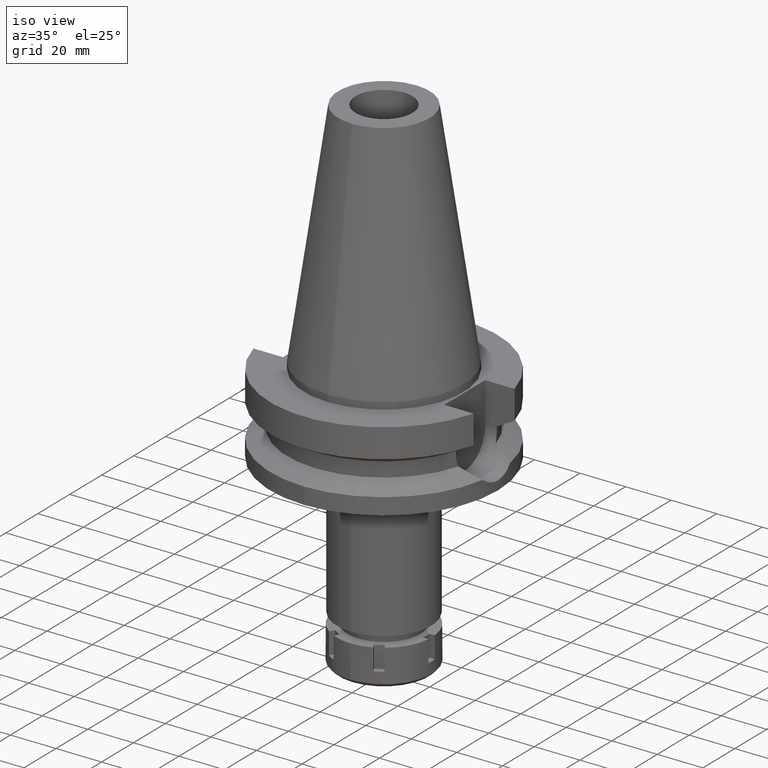
[diagram: clean part render]
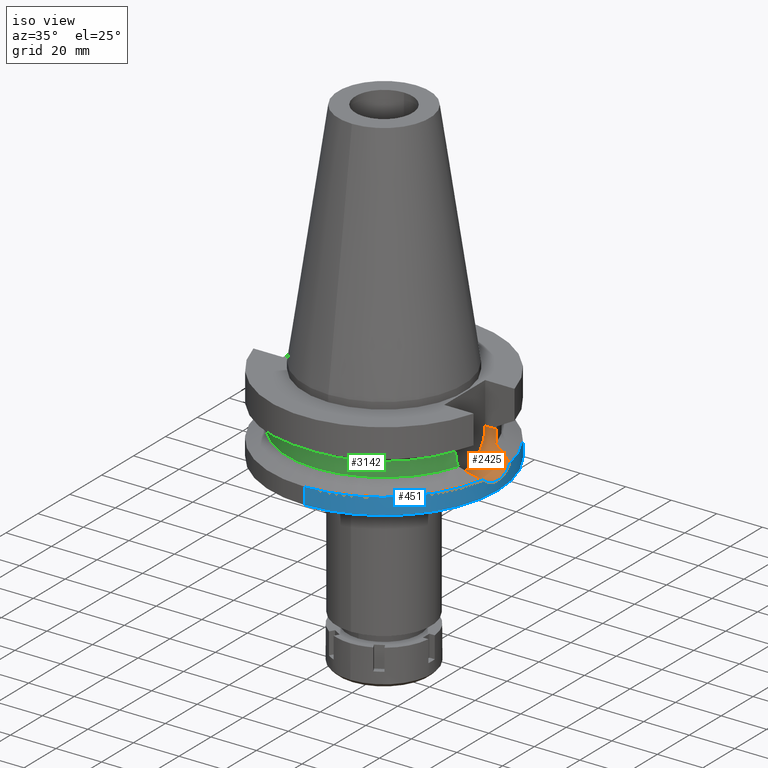
[diagram: same view with three faces highlighted in distinct colors, each labeled with its STEP entity id]
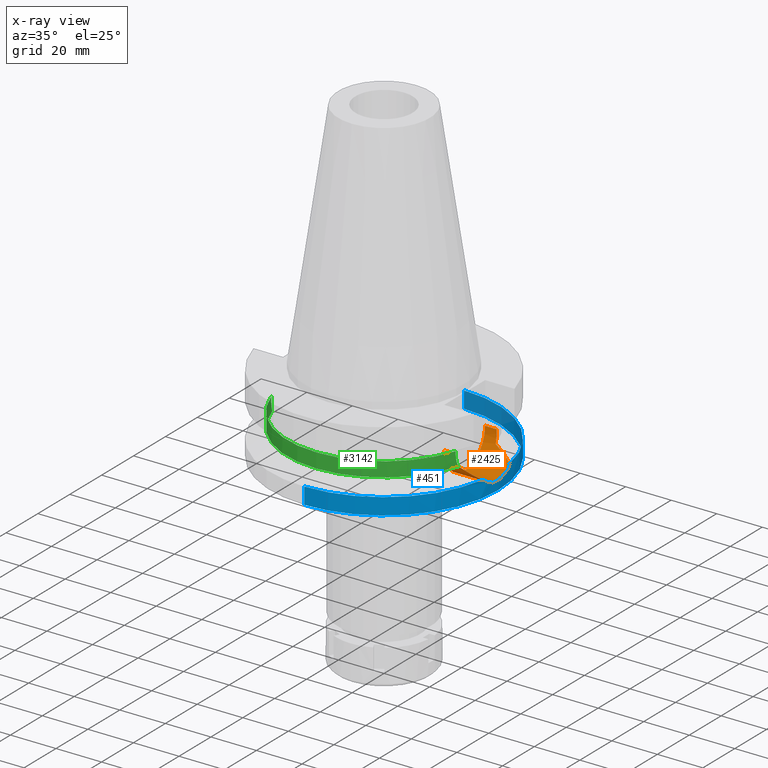
[diagram: x-ray of the same camera — body ghosted, the three highlighted faces saturated]
A machine part, iso view with three faces highlighted in distinct colors.
The next image is the same camera in x-ray (body ghosted, the three faces saturated) — at least one of them is partly hidden behind the body in this view.
Their STEP definitions:

[orange] entity #2425 — the highlighted cylindrical surface (edge-blend (fillet) strip) has radius 12.85 mm, axis along (1, 0, 0).
#45 = CARTESIAN_POINT ( 'NONE',  ( 40.51083188481999997, -12.84999999999999964, -21.14999999999999858 ) ) ;
#49 = CARTESIAN_POINT ( 'NONE',  ( 40.60092750940732031, 12.56262654778542931, -23.85254111937017640 ) ) ;
#55 = CARTESIAN_POINT ( 'NONE',  ( 45.33243307059954930, 10.38335453230233441, -28.72023715090724139 ) ) ;
#91 = EDGE_LOOP ( 'NONE', ( #467, #410, #1720, #903, #314, #3273, #524, #620, #2771 ) ) ;
#116 = CARTESIAN_POINT ( 'NONE',  ( 35.39999999999999858, -12.84999999999999964, -21.14999999999999858 ) ) ;
#130 = CARTESIAN_POINT ( 'NONE',  ( 45.40379164219142893, 10.35650822756904432, -28.75694566959975518 ) ) ;
#179 = CARTESIAN_POINT ( 'NONE',  ( 40.56599673094050473, -12.67509433839779120, -23.26596311455569932 ) ) ;
#210 = CARTESIAN_POINT ( 'NONE',  ( 40.63719938804641174, 12.44499676302016233, -24.35261212845198742 ) ) ;
#216 = CARTESIAN_POINT ( 'NONE',  ( 40.79434743163939459, 11.92110232363585531, -25.97065181133539369 ) ) ;
#314 = ORIENTED_EDGE ( 'NONE', *, *, #3122, .F. ) ;
#325 = VERTEX_POINT ( 'NONE', #2353 ) ;
#404 = EDGE_CURVE ( 'NONE', #2969, #2478, #1699, .T. ) ;
#410 = ORIENTED_EDGE ( 'NONE', *, *, #404, .T. ) ;
#427 = CARTESIAN_POINT ( 'NONE',  ( 46.75953253645555208, 9.809270111663222380, -29.45390692277220168 ) ) ;
#453 = CARTESIAN_POINT ( 'NONE',  ( 40.59188398425018818, -12.59182459259147002, -23.71305796896682594 ) ) ;
#462 = CARTESIAN_POINT ( 'NONE',  ( 49.26250064874000145, 8.556052234130000045, -30.73730776426999967 ) ) ;
#467 = ORIENTED_EDGE ( 'NONE', *, *, #1173, .T. ) ;
#500 = CARTESIAN_POINT ( 'NONE',  ( 40.54025313608426018, -12.75731810731625337, -22.70684014861359756 ) ) ;
#505 = CARTESIAN_POINT ( 'NONE',  ( 49.49359661717551262, 7.117097517338555335, -31.87764506060712577 ) ) ;
#524 = ORIENTED_EDGE ( 'NONE', *, *, #781, .T. ) ;
#538 = CARTESIAN_POINT ( 'NONE',  ( 49.86956835087499940, 3.608176225904875078, -33.48463187140002617 ) ) ;
#539 = VERTEX_POINT ( 'NONE', #3139 ) ;
#558 = CYLINDRICAL_SURFACE ( 'NONE', #1211, 12.85000000000000320 ) ;
#598 = CARTESIAN_POINT ( 'NONE',  ( 49.79053563887230638, -4.571955316160962290, -33.15915263188560402 ) ) ;
#620 = ORIENTED_EDGE ( 'NONE', *, *, #2142, .T. ) ;
#628 = VECTOR ( 'NONE', #2889, 1000.000000000000000 ) ;
#630 = CARTESIAN_POINT ( 'NONE',  ( 45.48500909913860113, 10.32574754409892215, -28.79872370404616078 ) ) ;
#632 = B_SPLINE_CURVE_WITH_KNOTS ( 'NONE', 3,
 ( #3067, #1648, #796, #2131, #2495, #1302 ),
 .UNSPECIFIED., .F., .F.,
 ( 4, 2, 4 ),
 ( 0.0000000000000000000, 0.5000000000000000000, 1.000000000000000000 ),
 .UNSPECIFIED. ) ;
#652 = CARTESIAN_POINT ( 'NONE',  ( 49.78972506718586999, -4.580790312887489613, -33.15578537448732277 ) ) ;
#661 = CARTESIAN_POINT ( 'NONE',  ( 42.53034043756355231, 11.33527986160932066, -27.27724400854194542 ) ) ;
#680 = CARTESIAN_POINT ( 'NONE',  ( 40.85052569294000335, 11.72538061688000077, -26.40718074535000426 ) ) ;
#745 = CARTESIAN_POINT ( 'NONE',  ( 40.51818719763606680, -12.82722225432308960, -22.03686830847411215 ) ) ;
#775 = CARTESIAN_POINT ( 'NONE',  ( 40.60257095199544608, 12.55731571366465182, -23.87709474180955738 ) ) ;
#781 = EDGE_CURVE ( 'NONE', #539, #2394, #632, .T. ) ;
#796 = CARTESIAN_POINT ( 'NONE',  ( 44.24070016522979643, -10.80636115588409574, -28.15887332331037740 ) ) ;
#804 = DIRECTION ( 'NONE',  ( 0.0000000000000000000, 0.0000000000000000000, -1.000000000000000000 ) ) ;
#816 = B_SPLINE_CURVE_WITH_KNOTS ( 'NONE', 3,
 ( #1187, #2662, #1555, #2052, #427, #3504, #1203, #2309, #630, #130, #1259, #3490, #55, #1501, #661, #2900 ),
 .UNSPECIFIED., .F., .F.,
 ( 4, 2, 2, 1, 1, 1, 1, 2, 2, 4 ),
 ( 0.0000000000000000000, 0.2500000000000469069, 0.3750000000000713873, 0.4375000000000827671, 0.4687500000000875966, 0.4843750000000898170, 0.4921875000000899281, 0.4960937500000889289, 0.5000000000000879297, 1.000000000000000000 ),
 .UNSPECIFIED. ) ;
#876 = EDGE_CURVE ( 'NONE', #2104, #539, #3158, .T. ) ;
#885 = CARTESIAN_POINT ( 'NONE',  ( 49.86089524291222830, -3.802281370710396846, -33.45152773120565826 ) ) ;
#903 = ORIENTED_EDGE ( 'NONE', *, *, #1638, .T. ) ;
#1058 = CARTESIAN_POINT ( 'NONE',  ( 40.62482961095487610, 12.48525133054237379, -24.19329755004105564 ) ) ;
#1070 = CARTESIAN_POINT ( 'NONE',  ( 35.39999999999999858, 12.84999999999999964, -21.14999999999999858 ) ) ;
#1075 = CARTESIAN_POINT ( 'NONE',  ( 40.65435955981745764, -12.39001970624487292, -24.66361747048510011 ) ) ;
#1079 = CARTESIAN_POINT ( 'NONE',  ( 49.84837320789218751, 3.895659733851558393, -33.39815592390944943 ) ) ;
#1122 = VERTEX_POINT ( 'NONE', #116 ) ;
#1132 = CARTESIAN_POINT ( 'NONE',  ( 49.80628862110419419, 4.396903292115012185, -33.22452887384411468 ) ) ;
#1173 = EDGE_CURVE ( 'NONE', #2602, #2969, #816, .T. ) ;
#1181 = CARTESIAN_POINT ( 'NONE',  ( 40.54025086427707691, 12.75862911299039659, -22.93149008167891267 ) ) ;
#1187 = CARTESIAN_POINT ( 'NONE',  ( 49.26250064874000145, 8.556052234130000045, -30.73730776426999967 ) ) ;
#1203 = CARTESIAN_POINT ( 'NONE',  ( 45.96584841009470068, 10.13901845308247651, -29.04601403992775843 ) ) ;
#1211 = AXIS2_PLACEMENT_3D ( 'NONE', #2790, #3667, #804 ) ;
#1236 = CARTESIAN_POINT ( 'NONE',  ( 49.78850586346571561, -4.594055356253032407, -33.15072133026724543 ) ) ;
#1259 = CARTESIAN_POINT ( 'NONE',  ( 45.36888519996826119, 10.36965759942468246, -28.73898915168728507 ) ) ;
#1302 = CARTESIAN_POINT ( 'NONE',  ( 49.26250064874000145, -8.556052234130000045, -30.73730776426999967 ) ) ;
#1328 = VECTOR ( 'NONE', #2399, 1000.000000000000000 ) ;
#1360 = CARTESIAN_POINT ( 'NONE',  ( 40.51083188481999997, -12.84999999999999964, -21.14999999999999858 ) ) ;
#1404 = FACE_OUTER_BOUND ( 'NONE', #91, .T. ) ;
#1441 = CARTESIAN_POINT ( 'NONE',  ( 40.51083188481999997, 12.84999999999999964, -22.03308001790878023 ) ) ;
#1495 = CARTESIAN_POINT ( 'NONE',  ( 35.39999999999999858, 0.0000000000000000000, -21.14999999999999858 ) ) ;
#1501 = CARTESIAN_POINT ( 'NONE',  ( 44.02092064244708070, 10.87473587190525315, -28.04554399755864580 ) ) ;
#1512 = CARTESIAN_POINT ( 'NONE',  ( 49.82079234875428853, 4.230048365419889933, -33.28454251579193368 ) ) ;
#1514 = CARTESIAN_POINT ( 'NONE',  ( 49.38719034093479365, -7.838136322118320898, -31.37800129303942853 ) ) ;
#1555 = CARTESIAN_POINT ( 'NONE',  ( 48.08420350912489738, 9.199014339284307340, -30.13377188362764514 ) ) ;
#1632 = CARTESIAN_POINT ( 'NONE',  ( 40.59544671389546977, -12.58032818125506580, -23.76890350620163517 ) ) ;
#1638 = EDGE_CURVE ( 'NONE', #325, #1122, #2687, .T. ) ;
#1648 = CARTESIAN_POINT ( 'NONE',  ( 42.65283723944623517, -11.30683262057288019, -27.34069146161790442 ) ) ;
#1653 = CARTESIAN_POINT ( 'NONE',  ( 49.90869784561250810, 3.032821729961897805, -33.64331055704772666 ) ) ;
#1699 = B_SPLINE_CURVE_WITH_KNOTS ( 'NONE', 3,
 ( #680, #216, #1900, #3393, #3151, #210, #1058, #2054, #3195, #775, #49, #1181, #1441, #2022 ),
 .UNSPECIFIED., .F., .F.,
 ( 4, 2, 2, 1, 1, 2, 2, 4 ),
 ( 0.0000000000000000000, 0.2500000000000199285, 0.3750000000000298650, 0.4375000000000346945, 0.4687500000000359157, 0.4843750000000358047, 0.5000000000000356382, 1.000000000000000000 ),
 .UNSPECIFIED. ) ;
#1720 = ORIENTED_EDGE ( 'NONE', *, *, #1751, .F. ) ;
#1726 = CARTESIAN_POINT ( 'NONE',  ( 49.49360537166788276, -7.117033888788488305, -31.87769203035870191 ) ) ;
#1751 = EDGE_CURVE ( 'NONE', #325, #2478, #2458, .T. ) ;
#1762 = B_SPLINE_CURVE_WITH_KNOTS ( 'NONE', 3,
 ( #2058, #1514, #1726, #3443, #2653, #3145, #3202, #2299, #2633, #2904, #3182, #1236, #652, #598, #1779, #885, #2580, #2920, #2018, #3495 ),
 .UNSPECIFIED., .F., .F.,
 ( 4, 2, 2, 2, 1, 1, 1, 1, 2, 2, 2, 4 ),
 ( 0.0000000000000000000, 0.2499999999999650280, 0.3749999999999478750, 0.4374999999999388822, 0.4687499999999350520, 0.4843749999999327205, 0.4921874999999311107, 0.4960937499999306111, 0.4980468749999303335, 0.4999999999999300559, 0.7499999999999650280, 1.000000000000000000 ),
 .UNSPECIFIED. ) ;
#1779 = CARTESIAN_POINT ( 'NONE',  ( 49.79079948641093978, -4.569077029243484134, -33.16024877062273646 ) ) ;
#1849 = CARTESIAN_POINT ( 'NONE',  ( 40.58662608485430923, -12.60878154790535000, -23.62927549513685221 ) ) ;
#1873 = CARTESIAN_POINT ( 'NONE',  ( 40.57496101843507574, -12.64633755876298693, -23.43369807928904081 ) ) ;
#1888 = CARTESIAN_POINT ( 'NONE',  ( 40.85052569294000335, -11.72538061688000077, -26.40718074535000426 ) ) ;
#1900 = CARTESIAN_POINT ( 'NONE',  ( 40.74530522851000569, 12.08734613715847139, -25.53455770061882646 ) ) ;
#1906 = CARTESIAN_POINT ( 'NONE',  ( 49.79239523035388970, 4.551608024956790288, -33.16687999445642276 ) ) ;
#1943 = CARTESIAN_POINT ( 'NONE',  ( 49.26250064874000145, -8.556052234130000045, -30.73730776426999967 ) ) ;
#2018 = CARTESIAN_POINT ( 'NONE',  ( 50.00000000000001421, -0.7410781193699033098, -34.00000000000001421 ) ) ;
#2022 = CARTESIAN_POINT ( 'NONE',  ( 40.51083188481999997, 12.84999999999999964, -21.14999999999999858 ) ) ;
#2052 = CARTESIAN_POINT ( 'NONE',  ( 47.09914492383754947, 9.658820935553016795, -29.62829927832092380 ) ) ;
#2054 = CARTESIAN_POINT ( 'NONE',  ( 40.61156896389181270, 12.52821669071923338, -24.00856318992673266 ) ) ;
#2058 = CARTESIAN_POINT ( 'NONE',  ( 49.26250064874000145, -8.556052234130000045, -30.73730776426999967 ) ) ;
#2104 = VERTEX_POINT ( 'NONE', #3428 ) ;
#2123 = CARTESIAN_POINT ( 'NONE',  ( 50.00000000000000000, 1.760368541433999985E-14, -34.00000000000000000 ) ) ;
#2131 = CARTESIAN_POINT ( 'NONE',  ( 46.98629010998021016, -9.746398928490775049, -29.57077517930066435 ) ) ;
#2142 = EDGE_CURVE ( 'NONE', #2394, #2504, #1762, .T. ) ;
#2203 = CARTESIAN_POINT ( 'NONE',  ( 50.00000000000000000, 1.760368541433999985E-14, -34.00000000000000000 ) ) ;
#2237 = CARTESIAN_POINT ( 'NONE',  ( 50.00000000000000000, 0.7410986934580465757, -34.00000000000000711 ) ) ;
#2278 = CARTESIAN_POINT ( 'NONE',  ( 40.51083188481999997, 12.84999999999999964, -21.14999999999999858 ) ) ;
#2298 = LINE ( 'NONE', #45, #628 ) ;
#2299 = CARTESIAN_POINT ( 'NONE',  ( 49.75681412771811551, -4.924294299596062352, -33.01930483962578222 ) ) ;
#2309 = CARTESIAN_POINT ( 'NONE',  ( 45.64652038007193369, 10.26391370890529053, -28.88179748783484513 ) ) ;
#2353 = CARTESIAN_POINT ( 'NONE',  ( 35.39999999999999858, 12.84999999999999964, -21.14999999999999858 ) ) ;
#2394 = VERTEX_POINT ( 'NONE', #1943 ) ;
#2399 = DIRECTION ( 'NONE',  ( 1.000000000000000000, -3.336643826789999529E-14, 0.0000000000000000000 ) ) ;
#2422 = EDGE_CURVE ( 'NONE', #2504, #2602, #3455, .T. ) ;
#2425 = ADVANCED_FACE ( 'NONE', ( #1404 ), #558, .F. ) ;
#2458 = LINE ( 'NONE', #1070, #1328 ) ;
#2471 = CARTESIAN_POINT ( 'NONE',  ( 49.79509875745612391, 4.521875388848922483, -33.17810981394750058 ) ) ;
#2478 = VERTEX_POINT ( 'NONE', #2278 ) ;
#2484 = CARTESIAN_POINT ( 'NONE',  ( 49.98260911345001034, 1.500697552647298316, -33.93573404313067954 ) ) ;
#2495 = CARTESIAN_POINT ( 'NONE',  ( 48.20262528035853933, -9.164278618336991755, -30.19450504619707587 ) ) ;
#2504 = VERTEX_POINT ( 'NONE', #2123 ) ;
#2540 = CARTESIAN_POINT ( 'NONE',  ( 49.79885843275886970, 4.480234919351184786, -33.19371722163926108 ) ) ;
#2580 = CARTESIAN_POINT ( 'NONE',  ( 49.91305952682014180, -3.031241889295981817, -33.66153705292303755 ) ) ;
#2602 = VERTEX_POINT ( 'NONE', #462 ) ;
#2633 = CARTESIAN_POINT ( 'NONE',  ( 49.76777238604239528, -4.813761785160150630, -33.06473290387078379 ) ) ;
#2653 = CARTESIAN_POINT ( 'NONE',  ( 49.66531744484520772, -5.772426570909336085, -32.63572039575122119 ) ) ;
#2662 = CARTESIAN_POINT ( 'NONE',  ( 48.69587113017157520, 8.881221620589634824, -30.44711511333064635 ) ) ;
#2683 = AXIS2_PLACEMENT_3D ( 'NONE', #1495, #3206, #3467 ) ;
#2687 = CIRCLE ( 'NONE', #2683, 12.84999999999999964 ) ;
#2770 = CARTESIAN_POINT ( 'NONE',  ( 40.73816957792652005, -12.11682261037108965, -25.53412604446967649 ) ) ;
#2771 = ORIENTED_EDGE ( 'NONE', *, *, #2422, .T. ) ;
#2790 = CARTESIAN_POINT ( 'NONE',  ( 35.39999999999999858, 0.0000000000000000000, -21.14999999999999858 ) ) ;
#2806 = CARTESIAN_POINT ( 'NONE',  ( 49.73972550765590483, 5.127766568180847528, -32.94800241996087209 ) ) ;
#2889 = DIRECTION ( 'NONE',  ( -1.000000000000000000, -3.510427359434999885E-14, 0.0000000000000000000 ) ) ;
#2900 = CARTESIAN_POINT ( 'NONE',  ( 40.85052569294000335, 11.72538061688000077, -26.40718074535000426 ) ) ;
#2904 = CARTESIAN_POINT ( 'NONE',  ( 49.77980747409252871, -4.687522623509686071, -33.11462325492126269 ) ) ;
#2920 = CARTESIAN_POINT ( 'NONE',  ( 49.98261190536403120, -1.500633726445465221, -33.93573757110410583 ) ) ;
#2969 = VERTEX_POINT ( 'NONE', #3335 ) ;
#3016 = CARTESIAN_POINT ( 'NONE',  ( 40.59736864107516396, -12.57412283048223856, -23.79851909554432865 ) ) ;
#3047 = CARTESIAN_POINT ( 'NONE',  ( 40.51083188481999997, -12.84999999999999609, -21.59154171183184800 ) ) ;
#3053 = CARTESIAN_POINT ( 'NONE',  ( 49.66986618806218701, 5.762088536309740050, -32.66233170636613181 ) ) ;
#3067 = CARTESIAN_POINT ( 'NONE',  ( 40.85052569294000335, -11.72538061688000077, -26.40718074535000426 ) ) ;
#3072 = CARTESIAN_POINT ( 'NONE',  ( 49.79171236025736391, 4.559090087493951948, -33.16404260906124790 ) ) ;
#3088 = CARTESIAN_POINT ( 'NONE',  ( 49.26250064874000145, 8.556052234130000045, -30.73730776426999967 ) ) ;
#3105 = CARTESIAN_POINT ( 'NONE',  ( 49.93043645379999873, 2.648747845077763508, -33.73005492415450846 ) ) ;
#3122 = EDGE_CURVE ( 'NONE', #2104, #1122, #2298, .T. ) ;
#3125 = CARTESIAN_POINT ( 'NONE',  ( 49.79347791494136999, 4.539715724454570278, -33.17137768956445854 ) ) ;
#3139 = CARTESIAN_POINT ( 'NONE',  ( 40.85052569294000335, -11.72538061688000077, -26.40718074535000426 ) ) ;
#3145 = CARTESIAN_POINT ( 'NONE',  ( 49.71771672570248768, -5.301668118434299970, -32.85661610131025157 ) ) ;
#3151 = CARTESIAN_POINT ( 'NONE',  ( 40.66327695313657387, 12.35977177935063587, -24.67238797833628539 ) ) ;
#3158 = B_SPLINE_CURVE_WITH_KNOTS ( 'NONE', 3,
 ( #1360, #3047, #745, #500, #3621, #179, #1873, #1849, #453, #1632, #3016, #1075, #2770, #1888 ),
 .UNSPECIFIED., .F., .F.,
 ( 4, 2, 2, 1, 1, 2, 2, 4 ),
 ( 0.0000000000000000000, 0.2499999999999892308, 0.3749999999999846789, 0.4374999999999822919, 0.4687499999999819589, 0.4843749999999820144, 0.4999999999999820144, 1.000000000000000000 ),
 .UNSPECIFIED. ) ;
#3182 = CARTESIAN_POINT ( 'NONE',  ( 49.78563763145221799, -4.625094769533133032, -33.13881278610047332 ) ) ;
#3195 = CARTESIAN_POINT ( 'NONE',  ( 40.60613670648131546, 12.54578755583637495, -23.92964714798038628 ) ) ;
#3202 = CARTESIAN_POINT ( 'NONE',  ( 49.73404098631355907, -5.148335372569310842, -32.92469446701462488 ) ) ;
#3206 = DIRECTION ( 'NONE',  ( -1.000000000000000000, 0.0000000000000000000, 0.0000000000000000000 ) ) ;
#3273 = ORIENTED_EDGE ( 'NONE', *, *, #876, .T. ) ;
#3335 = CARTESIAN_POINT ( 'NONE',  ( 40.85052569294000335, 11.72538061688000077, -26.40718074535000426 ) ) ;
#3351 = CARTESIAN_POINT ( 'NONE',  ( 49.38718636588254896, 7.838159208976090753, -31.37798086799878305 ) ) ;
#3393 = CARTESIAN_POINT ( 'NONE',  ( 40.68244601107283387, 12.29666625012446346, -24.88710380514564235 ) ) ;
#3428 = CARTESIAN_POINT ( 'NONE',  ( 40.51083188481999997, -12.84999999999999964, -21.14999999999999858 ) ) ;
#3443 = CARTESIAN_POINT ( 'NONE',  ( 49.62581592557496180, -6.100685968596043729, -32.46624463462468668 ) ) ;
#3455 = B_SPLINE_CURVE_WITH_KNOTS ( 'NONE', 3,
 ( #2203, #2237, #2484, #3105, #1653, #538, #1079, #1512, #1132, #2540, #2471, #3125, #1906, #3072, #2806, #3053, #505, #3351, #3088 ),
 .UNSPECIFIED., .F., .F.,
 ( 4, 2, 2, 1, 1, 1, 1, 1, 2, 2, 2, 4 ),
 ( 0.0000000000000000000, 0.2500000000000297540, 0.3750000000000446865, 0.4375000000000521805, 0.4687500000000562883, 0.4843750000000582867, 0.4921875000000596745, 0.4960937500000605627, 0.4980468750000607292, 0.5000000000000608402, 0.7500000000000304201, 1.000000000000000000 ),
 .UNSPECIFIED. ) ;
#3467 = DIRECTION ( 'NONE',  ( 0.0000000000000000000, 1.000000000000000000, 0.0000000000000000000 ) ) ;
#3490 = CARTESIAN_POINT ( 'NONE',  ( 45.34559224722517712, 10.37841630773243295, -28.72700666603421027 ) ) ;
#3495 = CARTESIAN_POINT ( 'NONE',  ( 50.00000000000000000, 1.760368541433999985E-14, -34.00000000000000000 ) ) ;
#3504 = CARTESIAN_POINT ( 'NONE',  ( 46.23322466695320543, 10.02993712604732579, -29.18345497429006841 ) ) ;
#3621 = CARTESIAN_POINT ( 'NONE',  ( 40.54944727710435615, -12.72806419699665526, -22.93049076237651107 ) ) ;
#3667 = DIRECTION ( 'NONE',  ( 1.000000000000000000, 0.0000000000000000000, 0.0000000000000000000 ) ) ;

[blue] entity #451 — the highlighted cylindrical surface (partial cylindrical patch) has radius 50 mm, axis along (0, 0, -1).
#34 = EDGE_CURVE ( 'NONE', #2012, #2602, #3513, .T. ) ;
#50 = CARTESIAN_POINT ( 'NONE',  ( 0.0000000000000000000, 50.00000000000000000, -38.00000000000000000 ) ) ;
#98 = FACE_OUTER_BOUND ( 'NONE', #2105, .T. ) ;
#151 = ORIENTED_EDGE ( 'NONE', *, *, #1821, .T. ) ;
#167 = DIRECTION ( 'NONE',  ( 0.0000000000000000000, -2.054527022025999694E-14, -1.000000000000000000 ) ) ;
#177 = DIRECTION ( 'NONE',  ( 0.0000000000000000000, -1.000000000000000000, 0.0000000000000000000 ) ) ;
#451 = ADVANCED_FACE ( 'NONE', ( #98 ), #687, .T. ) ;
#462 = CARTESIAN_POINT ( 'NONE',  ( 49.26250064874000145, 8.556052234130000045, -30.73730776426999967 ) ) ;
#505 = CARTESIAN_POINT ( 'NONE',  ( 49.49359661717551262, 7.117097517338555335, -31.87764506060712577 ) ) ;
#538 = CARTESIAN_POINT ( 'NONE',  ( 49.86956835087499940, 3.608176225904875078, -33.48463187140002617 ) ) ;
#598 = CARTESIAN_POINT ( 'NONE',  ( 49.79053563887230638, -4.571955316160962290, -33.15915263188560402 ) ) ;
#614 = CIRCLE ( 'NONE', #1505, 50.00000000000000000 ) ;
#652 = CARTESIAN_POINT ( 'NONE',  ( 49.78972506718586999, -4.580790312887489613, -33.15578537448732277 ) ) ;
#687 = CYLINDRICAL_SURFACE ( 'NONE', #728, 50.00000000000000000 ) ;
#713 = CARTESIAN_POINT ( 'NONE',  ( 0.0000000000000000000, -50.00000000000000000, -30.73730776426999967 ) ) ;
#728 = AXIS2_PLACEMENT_3D ( 'NONE', #1247, #3238, #177 ) ;
#885 = CARTESIAN_POINT ( 'NONE',  ( 49.86089524291222830, -3.802281370710396846, -33.45152773120565826 ) ) ;
#933 = CARTESIAN_POINT ( 'NONE',  ( 0.0000000000000000000, 0.0000000000000000000, -30.73730776426999967 ) ) ;
#1079 = CARTESIAN_POINT ( 'NONE',  ( 49.84837320789218751, 3.895659733851558393, -33.39815592390944943 ) ) ;
#1092 = VECTOR ( 'NONE', #167, 1000.000000000000000 ) ;
#1127 = ORIENTED_EDGE ( 'NONE', *, *, #2422, .F. ) ;
#1132 = CARTESIAN_POINT ( 'NONE',  ( 49.80628862110419419, 4.396903292115012185, -33.22452887384411468 ) ) ;
#1152 = CIRCLE ( 'NONE', #3175, 50.00000000000000000 ) ;
#1236 = CARTESIAN_POINT ( 'NONE',  ( 49.78850586346571561, -4.594055356253032407, -33.15072133026724543 ) ) ;
#1247 = CARTESIAN_POINT ( 'NONE',  ( 0.0000000000000000000, 2.602251983507999750E-14, 112.4900000000000091 ) ) ;
#1299 = ORIENTED_EDGE ( 'NONE', *, *, #2606, .F. ) ;
#1505 = AXIS2_PLACEMENT_3D ( 'NONE', #1784, #2062, #2344 ) ;
#1512 = CARTESIAN_POINT ( 'NONE',  ( 49.82079234875428853, 4.230048365419889933, -33.28454251579193368 ) ) ;
#1514 = CARTESIAN_POINT ( 'NONE',  ( 49.38719034093479365, -7.838136322118320898, -31.37800129303942853 ) ) ;
#1621 = EDGE_CURVE ( 'NONE', #1993, #2717, #614, .T. ) ;
#1653 = CARTESIAN_POINT ( 'NONE',  ( 49.90869784561250810, 3.032821729961897805, -33.64331055704772666 ) ) ;
#1726 = CARTESIAN_POINT ( 'NONE',  ( 49.49360537166788276, -7.117033888788488305, -31.87769203035870191 ) ) ;
#1762 = B_SPLINE_CURVE_WITH_KNOTS ( 'NONE', 3,
 ( #2058, #1514, #1726, #3443, #2653, #3145, #3202, #2299, #2633, #2904, #3182, #1236, #652, #598, #1779, #885, #2580, #2920, #2018, #3495 ),
 .UNSPECIFIED., .F., .F.,
 ( 4, 2, 2, 2, 1, 1, 1, 1, 2, 2, 2, 4 ),
 ( 0.0000000000000000000, 0.2499999999999650280, 0.3749999999999478750, 0.4374999999999388822, 0.4687499999999350520, 0.4843749999999327205, 0.4921874999999311107, 0.4960937499999306111, 0.4980468749999303335, 0.4999999999999300559, 0.7499999999999650280, 1.000000000000000000 ),
 .UNSPECIFIED. ) ;
#1779 = CARTESIAN_POINT ( 'NONE',  ( 49.79079948641093978, -4.569077029243484134, -33.16024877062273646 ) ) ;
#1784 = CARTESIAN_POINT ( 'NONE',  ( 0.0000000000000000000, 2.602251983507999750E-14, -38.00000000000000000 ) ) ;
#1821 = EDGE_CURVE ( 'NONE', #1939, #1993, #3577, .T. ) ;
#1836 = DIRECTION ( 'NONE',  ( 0.9852500129747439050, -0.1711210446826074982, 0.0000000000000000000 ) ) ;
#1906 = CARTESIAN_POINT ( 'NONE',  ( 49.79239523035388970, 4.551608024956790288, -33.16687999445642276 ) ) ;
#1939 = VERTEX_POINT ( 'NONE', #2488 ) ;
#1943 = CARTESIAN_POINT ( 'NONE',  ( 49.26250064874000145, -8.556052234130000045, -30.73730776426999967 ) ) ;
#1972 = VECTOR ( 'NONE', #2672, 1000.000000000000000 ) ;
#1993 = VERTEX_POINT ( 'NONE', #3077 ) ;
#2012 = VERTEX_POINT ( 'NONE', #2530 ) ;
#2018 = CARTESIAN_POINT ( 'NONE',  ( 50.00000000000001421, -0.7410781193699033098, -34.00000000000001421 ) ) ;
#2055 = DIRECTION ( 'NONE',  ( 0.0000000000000000000, 0.0000000000000000000, -1.000000000000000000 ) ) ;
#2058 = CARTESIAN_POINT ( 'NONE',  ( 49.26250064874000145, -8.556052234130000045, -30.73730776426999967 ) ) ;
#2062 = DIRECTION ( 'NONE',  ( 0.0000000000000000000, 0.0000000000000000000, 1.000000000000000000 ) ) ;
#2087 = ORIENTED_EDGE ( 'NONE', *, *, #2222, .T. ) ;
#2105 = EDGE_LOOP ( 'NONE', ( #2087, #151, #2535, #1299, #2542, #1127, #2272 ) ) ;
#2123 = CARTESIAN_POINT ( 'NONE',  ( 50.00000000000000000, 1.760368541433999985E-14, -34.00000000000000000 ) ) ;
#2142 = EDGE_CURVE ( 'NONE', #2394, #2504, #1762, .T. ) ;
#2174 = DIRECTION ( 'NONE',  ( 0.0000000000000000000, 0.0000000000000000000, -1.000000000000000000 ) ) ;
#2203 = CARTESIAN_POINT ( 'NONE',  ( 50.00000000000000000, 1.760368541433999985E-14, -34.00000000000000000 ) ) ;
#2222 = EDGE_CURVE ( 'NONE', #2394, #1939, #1152, .T. ) ;
#2237 = CARTESIAN_POINT ( 'NONE',  ( 50.00000000000000000, 0.7410986934580465757, -34.00000000000000711 ) ) ;
#2272 = ORIENTED_EDGE ( 'NONE', *, *, #2142, .F. ) ;
#2299 = CARTESIAN_POINT ( 'NONE',  ( 49.75681412771811551, -4.924294299596062352, -33.01930483962578222 ) ) ;
#2344 = DIRECTION ( 'NONE',  ( 0.0000000000000000000, -1.000000000000000000, 0.0000000000000000000 ) ) ;
#2376 = LINE ( 'NONE', #3538, #1972 ) ;
#2394 = VERTEX_POINT ( 'NONE', #1943 ) ;
#2422 = EDGE_CURVE ( 'NONE', #2504, #2602, #3455, .T. ) ;
#2471 = CARTESIAN_POINT ( 'NONE',  ( 49.79509875745612391, 4.521875388848922483, -33.17810981394750058 ) ) ;
#2484 = CARTESIAN_POINT ( 'NONE',  ( 49.98260911345001034, 1.500697552647298316, -33.93573404313067954 ) ) ;
#2488 = CARTESIAN_POINT ( 'NONE',  ( 0.0000000000000000000, -50.00000000000000000, -30.73730776426999967 ) ) ;
#2504 = VERTEX_POINT ( 'NONE', #2123 ) ;
#2530 = CARTESIAN_POINT ( 'NONE',  ( 0.0000000000000000000, 50.00000000000000000, -30.73730776426999967 ) ) ;
#2535 = ORIENTED_EDGE ( 'NONE', *, *, #1621, .T. ) ;
#2540 = CARTESIAN_POINT ( 'NONE',  ( 49.79885843275886970, 4.480234919351184786, -33.19371722163926108 ) ) ;
#2542 = ORIENTED_EDGE ( 'NONE', *, *, #34, .T. ) ;
#2580 = CARTESIAN_POINT ( 'NONE',  ( 49.91305952682014180, -3.031241889295981817, -33.66153705292303755 ) ) ;
#2602 = VERTEX_POINT ( 'NONE', #462 ) ;
#2606 = EDGE_CURVE ( 'NONE', #2012, #2717, #2376, .T. ) ;
#2615 = AXIS2_PLACEMENT_3D ( 'NONE', #933, #2055, #3548 ) ;
#2633 = CARTESIAN_POINT ( 'NONE',  ( 49.76777238604239528, -4.813761785160150630, -33.06473290387078379 ) ) ;
#2653 = CARTESIAN_POINT ( 'NONE',  ( 49.66531744484520772, -5.772426570909336085, -32.63572039575122119 ) ) ;
#2672 = DIRECTION ( 'NONE',  ( 0.0000000000000000000, 2.152361642122000014E-14, -1.000000000000000000 ) ) ;
#2717 = VERTEX_POINT ( 'NONE', #50 ) ;
#2806 = CARTESIAN_POINT ( 'NONE',  ( 49.73972550765590483, 5.127766568180847528, -32.94800241996087209 ) ) ;
#2904 = CARTESIAN_POINT ( 'NONE',  ( 49.77980747409252871, -4.687522623509686071, -33.11462325492126269 ) ) ;
#2920 = CARTESIAN_POINT ( 'NONE',  ( 49.98261190536403120, -1.500633726445465221, -33.93573757110410583 ) ) ;
#3001 = CARTESIAN_POINT ( 'NONE',  ( 0.0000000000000000000, 0.0000000000000000000, -30.73730776426999967 ) ) ;
#3053 = CARTESIAN_POINT ( 'NONE',  ( 49.66986618806218701, 5.762088536309740050, -32.66233170636613181 ) ) ;
#3072 = CARTESIAN_POINT ( 'NONE',  ( 49.79171236025736391, 4.559090087493951948, -33.16404260906124790 ) ) ;
#3077 = CARTESIAN_POINT ( 'NONE',  ( 0.0000000000000000000, -50.00000000000000000, -38.00000000000000000 ) ) ;
#3088 = CARTESIAN_POINT ( 'NONE',  ( 49.26250064874000145, 8.556052234130000045, -30.73730776426999967 ) ) ;
#3105 = CARTESIAN_POINT ( 'NONE',  ( 49.93043645379999873, 2.648747845077763508, -33.73005492415450846 ) ) ;
#3125 = CARTESIAN_POINT ( 'NONE',  ( 49.79347791494136999, 4.539715724454570278, -33.17137768956445854 ) ) ;
#3145 = CARTESIAN_POINT ( 'NONE',  ( 49.71771672570248768, -5.301668118434299970, -32.85661610131025157 ) ) ;
#3175 = AXIS2_PLACEMENT_3D ( 'NONE', #3001, #2174, #1836 ) ;
#3182 = CARTESIAN_POINT ( 'NONE',  ( 49.78563763145221799, -4.625094769533133032, -33.13881278610047332 ) ) ;
#3202 = CARTESIAN_POINT ( 'NONE',  ( 49.73404098631355907, -5.148335372569310842, -32.92469446701462488 ) ) ;
#3238 = DIRECTION ( 'NONE',  ( 0.0000000000000000000, 0.0000000000000000000, -1.000000000000000000 ) ) ;
#3351 = CARTESIAN_POINT ( 'NONE',  ( 49.38718636588254896, 7.838159208976090753, -31.37798086799878305 ) ) ;
#3443 = CARTESIAN_POINT ( 'NONE',  ( 49.62581592557496180, -6.100685968596043729, -32.46624463462468668 ) ) ;
#3455 = B_SPLINE_CURVE_WITH_KNOTS ( 'NONE', 3,
 ( #2203, #2237, #2484, #3105, #1653, #538, #1079, #1512, #1132, #2540, #2471, #3125, #1906, #3072, #2806, #3053, #505, #3351, #3088 ),
 .UNSPECIFIED., .F., .F.,
 ( 4, 2, 2, 1, 1, 1, 1, 1, 2, 2, 2, 4 ),
 ( 0.0000000000000000000, 0.2500000000000297540, 0.3750000000000446865, 0.4375000000000521805, 0.4687500000000562883, 0.4843750000000582867, 0.4921875000000596745, 0.4960937500000605627, 0.4980468750000607292, 0.5000000000000608402, 0.7500000000000304201, 1.000000000000000000 ),
 .UNSPECIFIED. ) ;
#3495 = CARTESIAN_POINT ( 'NONE',  ( 50.00000000000000000, 1.760368541433999985E-14, -34.00000000000000000 ) ) ;
#3513 = CIRCLE ( 'NONE', #2615, 50.00000000000000000 ) ;
#3538 = CARTESIAN_POINT ( 'NONE',  ( 0.0000000000000000000, 50.00000000000000000, -30.73730776426999967 ) ) ;
#3548 = DIRECTION ( 'NONE',  ( 0.0000000000000000000, 1.000000000000000000, 0.0000000000000000000 ) ) ;
#3577 = LINE ( 'NONE', #713, #1092 ) ;

[green] entity #3142 — the highlighted cylindrical surface (partial cylindrical patch) has radius 42.5 mm, axis along (0, 0, -1).
#23 = FACE_OUTER_BOUND ( 'NONE', #2156, .T. ) ;
#179 = CARTESIAN_POINT ( 'NONE',  ( 40.56599673094050473, -12.67509433839779120, -23.26596311455569932 ) ) ;
#208 = CARTESIAN_POINT ( 'NONE',  ( -40.60613670648186968, -12.54578755583301231, -23.92964714799551729 ) ) ;
#226 = VERTEX_POINT ( 'NONE', #3493 ) ;
#229 = CARTESIAN_POINT ( 'NONE',  ( -40.60092750940732031, -12.56262654778352506, -23.85254111937892674 ) ) ;
#269 = EDGE_CURVE ( 'NONE', #3065, #2104, #2647, .T. ) ;
#414 = B_SPLINE_CURVE_WITH_KNOTS ( 'NONE', 3,
 ( #698, #2966, #3040, #1037, #2160, #2761, #1882, #478, #208, #1625, #229, #1423, #3372, #1712 ),
 .UNSPECIFIED., .F., .F.,
 ( 4, 2, 2, 1, 1, 2, 2, 4 ),
 ( 0.0000000000000000000, 0.2499999999999908407, 0.3749999999999861222, 0.4374999999999826250, 0.4687499999999819034, 0.4843749999999814593, 0.4999999999999810707, 1.000000000000000000 ),
 .UNSPECIFIED. ) ;
#453 = CARTESIAN_POINT ( 'NONE',  ( 40.59188398425018818, -12.59182459259147002, -23.71305796896682594 ) ) ;
#478 = CARTESIAN_POINT ( 'NONE',  ( -40.61156896389279325, -12.52821669071489552, -24.00856318994577876 ) ) ;
#500 = CARTESIAN_POINT ( 'NONE',  ( 40.54025313608426018, -12.75731810731625337, -22.70684014861359756 ) ) ;
#539 = VERTEX_POINT ( 'NONE', #3139 ) ;
#597 = DIRECTION ( 'NONE',  ( 0.0000000000000000000, 0.0000000000000000000, -1.000000000000000000 ) ) ;
#619 = LINE ( 'NONE', #2283, #2506 ) ;
#651 = CYLINDRICAL_SURFACE ( 'NONE', #2884, 42.50000000000000000 ) ;
#698 = CARTESIAN_POINT ( 'NONE',  ( -40.85052569294000335, -11.72538061688000077, -26.40718074535000426 ) ) ;
#745 = CARTESIAN_POINT ( 'NONE',  ( 40.51818719763606680, -12.82722225432308960, -22.03686830847411215 ) ) ;
#798 = VERTEX_POINT ( 'NONE', #2997 ) ;
#834 = ORIENTED_EDGE ( 'NONE', *, *, #269, .F. ) ;
#836 = CARTESIAN_POINT ( 'NONE',  ( 0.0000000000000000000, 1.006319759053999930E-14, -19.99281925464999787 ) ) ;
#876 = EDGE_CURVE ( 'NONE', #2104, #539, #3158, .T. ) ;
#878 = ORIENTED_EDGE ( 'NONE', *, *, #2085, .F. ) ;
#902 = DIRECTION ( 'NONE',  ( -9.446680104782181084E-07, 2.978157163070055408E-06, 0.9999999999951191265 ) ) ;
#1013 = ORIENTED_EDGE ( 'NONE', *, *, #1904, .F. ) ;
#1037 = CARTESIAN_POINT ( 'NONE',  ( -40.68244601107633684, -12.29666625011165415, -24.88710380518764254 ) ) ;
#1075 = CARTESIAN_POINT ( 'NONE',  ( 40.65435955981745764, -12.39001970624487292, -24.66361747048510011 ) ) ;
#1264 = VERTEX_POINT ( 'NONE', #1918 ) ;
#1349 = ORIENTED_EDGE ( 'NONE', *, *, #3612, .T. ) ;
#1360 = CARTESIAN_POINT ( 'NONE',  ( 40.51083188481999997, -12.84999999999999964, -21.14999999999999858 ) ) ;
#1361 = ORIENTED_EDGE ( 'NONE', *, *, #876, .F. ) ;
#1386 = CARTESIAN_POINT ( 'NONE',  ( 0.0000000000000000000, 0.0000000000000000000, -26.40718074535000426 ) ) ;
#1423 = CARTESIAN_POINT ( 'NONE',  ( -40.54025086427707691, -12.75862911298345992, -22.93149008171479508 ) ) ;
#1625 = CARTESIAN_POINT ( 'NONE',  ( -40.60257095199571609, -12.55731571366193577, -23.87709474182198122 ) ) ;
#1632 = CARTESIAN_POINT ( 'NONE',  ( 40.59544671389546977, -12.58032818125506580, -23.76890350620163517 ) ) ;
#1652 = DIRECTION ( 'NONE',  ( 0.9531960443486575674, -0.3023529411764863672, 0.0000000000000000000 ) ) ;
#1712 = CARTESIAN_POINT ( 'NONE',  ( -40.51083188481999997, -12.84999999999999964, -21.14999999999999858 ) ) ;
#1849 = CARTESIAN_POINT ( 'NONE',  ( 40.58662608485430923, -12.60878154790535000, -23.62927549513685221 ) ) ;
#1873 = CARTESIAN_POINT ( 'NONE',  ( 40.57496101843507574, -12.64633755876298693, -23.43369807928904081 ) ) ;
#1882 = CARTESIAN_POINT ( 'NONE',  ( -40.62482961095668088, -12.48525133053583147, -24.19329755006814153 ) ) ;
#1888 = CARTESIAN_POINT ( 'NONE',  ( 40.85052569294000335, -11.72538061688000077, -26.40718074535000426 ) ) ;
#1904 = EDGE_CURVE ( 'NONE', #798, #226, #414, .T. ) ;
#1910 = EDGE_CURVE ( 'NONE', #798, #539, #2932, .T. ) ;
#1918 = CARTESIAN_POINT ( 'NONE',  ( -40.51083297795000249, -12.84999655380999783, -19.99284570174000208 ) ) ;
#1959 = DIRECTION ( 'NONE',  ( 0.0000000000000000000, 0.0000000000000000000, -1.000000000000000000 ) ) ;
#1967 = AXIS2_PLACEMENT_3D ( 'NONE', #1386, #3111, #2508 ) ;
#2085 = EDGE_CURVE ( 'NONE', #226, #1264, #619, .T. ) ;
#2089 = CARTESIAN_POINT ( 'NONE',  ( 40.51083297962999552, -12.84999654849000095, -19.99284574256000013 ) ) ;
#2104 = VERTEX_POINT ( 'NONE', #3428 ) ;
#2156 = EDGE_LOOP ( 'NONE', ( #1013, #3444, #1361, #834, #1349, #878 ) ) ;
#2160 = CARTESIAN_POINT ( 'NONE',  ( -40.66327695313978552, -12.35977177933932225, -24.67238797837626052 ) ) ;
#2283 = CARTESIAN_POINT ( 'NONE',  ( -40.51083188481999997, -12.84999999999999964, -21.14999999999999858 ) ) ;
#2506 = VECTOR ( 'NONE', #902, 1000.000000000000114 ) ;
#2508 = DIRECTION ( 'NONE',  ( 0.0000000000000000000, -1.000000000000000000, 0.0000000000000000000 ) ) ;
#2647 = LINE ( 'NONE', #2089, #3398 ) ;
#2688 = DIRECTION ( 'NONE',  ( -9.461257578572038838E-07, -2.982752861267009825E-06, -0.9999999999951039165 ) ) ;
#2761 = CARTESIAN_POINT ( 'NONE',  ( -40.63719938804874943, -12.44499676301189162, -24.35261212848416079 ) ) ;
#2770 = CARTESIAN_POINT ( 'NONE',  ( 40.73816957792652005, -12.11682261037108965, -25.53412604446967649 ) ) ;
#2822 = CIRCLE ( 'NONE', #3010, 42.50000000000002132 ) ;
#2884 = AXIS2_PLACEMENT_3D ( 'NONE', #3494, #597, #2919 ) ;
#2919 = DIRECTION ( 'NONE',  ( 0.0000000000000000000, -1.000000000000000000, 0.0000000000000000000 ) ) ;
#2932 = CIRCLE ( 'NONE', #1967, 42.50000000000000000 ) ;
#2966 = CARTESIAN_POINT ( 'NONE',  ( -40.79434743164174648, -11.92110232362476019, -25.97065181136010992 ) ) ;
#2997 = CARTESIAN_POINT ( 'NONE',  ( -40.85052569294000335, -11.72538061688000077, -26.40718074535000426 ) ) ;
#3010 = AXIS2_PLACEMENT_3D ( 'NONE', #836, #1959, #1652 ) ;
#3016 = CARTESIAN_POINT ( 'NONE',  ( 40.59736864107516396, -12.57412283048223856, -23.79851909554432865 ) ) ;
#3040 = CARTESIAN_POINT ( 'NONE',  ( -40.74530522851353709, -12.08734613714425876, -25.53455770065779618 ) ) ;
#3047 = CARTESIAN_POINT ( 'NONE',  ( 40.51083188481999997, -12.84999999999999609, -21.59154171183184800 ) ) ;
#3065 = VERTEX_POINT ( 'NONE', #3144 ) ;
#3111 = DIRECTION ( 'NONE',  ( 0.0000000000000000000, 0.0000000000000000000, 1.000000000000000000 ) ) ;
#3139 = CARTESIAN_POINT ( 'NONE',  ( 40.85052569294000335, -11.72538061688000077, -26.40718074535000426 ) ) ;
#3142 = ADVANCED_FACE ( 'NONE', ( #23 ), #651, .T. ) ;
#3144 = CARTESIAN_POINT ( 'NONE',  ( 40.51083188481999997, -12.84999999999999964, -19.99281925464999787 ) ) ;
#3158 = B_SPLINE_CURVE_WITH_KNOTS ( 'NONE', 3,
 ( #1360, #3047, #745, #500, #3621, #179, #1873, #1849, #453, #1632, #3016, #1075, #2770, #1888 ),
 .UNSPECIFIED., .F., .F.,
 ( 4, 2, 2, 1, 1, 2, 2, 4 ),
 ( 0.0000000000000000000, 0.2499999999999892308, 0.3749999999999846789, 0.4374999999999822919, 0.4687499999999819589, 0.4843749999999820144, 0.4999999999999820144, 1.000000000000000000 ),
 .UNSPECIFIED. ) ;
#3372 = CARTESIAN_POINT ( 'NONE',  ( -40.51083188482000708, -12.84999999999998543, -22.03308001794205140 ) ) ;
#3398 = VECTOR ( 'NONE', #2688, 1000.000000000000114 ) ;
#3428 = CARTESIAN_POINT ( 'NONE',  ( 40.51083188481999997, -12.84999999999999964, -21.14999999999999858 ) ) ;
#3444 = ORIENTED_EDGE ( 'NONE', *, *, #1910, .T. ) ;
#3493 = CARTESIAN_POINT ( 'NONE',  ( -40.51083188481999997, -12.84999999999999964, -21.14999999999999858 ) ) ;
#3494 = CARTESIAN_POINT ( 'NONE',  ( 0.0000000000000000000, 2.602251983507999750E-14, 112.4900000000000091 ) ) ;
#3612 = EDGE_CURVE ( 'NONE', #3065, #1264, #2822, .T. ) ;
#3621 = CARTESIAN_POINT ( 'NONE',  ( 40.54944727710435615, -12.72806419699665526, -22.93049076237651107 ) ) ;